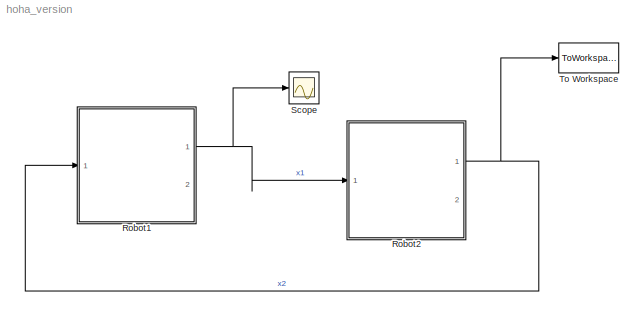
MODEL hoha_version
KIND model
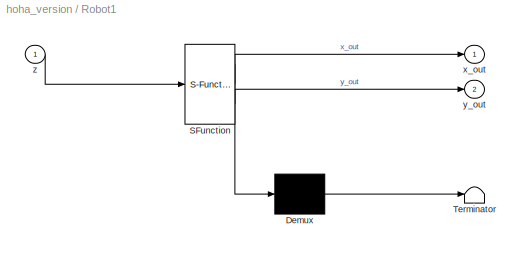
BLOCK [SubSystem] Robot1
  ErrorFcn = Stateflow.Translate.translate
  PermitHierarchicalResolution = ExplicitOnly
  Ports = [1, 2]
  RequestExecContextInheritance = off
  SFBlockType = Chart
  SID = 1
  TreatAsAtomicUnit = on
BLOCK [Demux] Robot1/ Demux 
  Outputs = 1
  Ports = [1, 1]
  SID = 1::90
BLOCK [S-Function] Robot1/ SFunction 
  EnableBusSupport = on
  FunctionName = sf_sfun
  PortCounts = [1 3]
  Ports = [1, 3]
  SFcnIsStateOwnerBlock = off
  SFunctionDeploymentMode = off
  SID = 1::89
  Tag = Stateflow S-Function hoha_version 3
BLOCK [Terminator] Robot1/ Terminator 
  SID = 1::91
BLOCK [Outport] Robot1/x_out
  IconDisplay = Port number
  SID = 1::94
BLOCK [Outport] Robot1/y_out
  IconDisplay = Port number
  Port = 2
  SID = 1::97
BLOCK [Inport] Robot1/z
  IconDisplay = Port number
  SID = 1::95
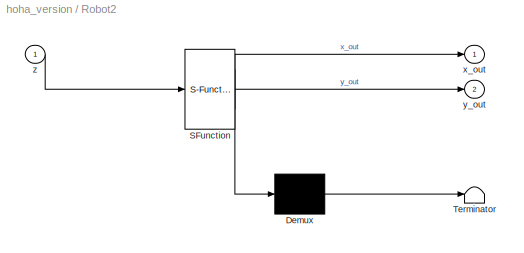
BLOCK [SubSystem] Robot2
  ErrorFcn = Stateflow.Translate.translate
  PermitHierarchicalResolution = ExplicitOnly
  Ports = [1, 2]
  RequestExecContextInheritance = off
  SFBlockType = Chart
  SID = 12
  TreatAsAtomicUnit = on
BLOCK [Demux] Robot2/ Demux 
  Outputs = 1
  Ports = [1, 1]
  SID = 12::90
BLOCK [S-Function] Robot2/ SFunction 
  EnableBusSupport = on
  FunctionName = sf_sfun
  PortCounts = [1 3]
  Ports = [1, 3]
  SFcnIsStateOwnerBlock = off
  SFunctionDeploymentMode = off
  SID = 12::89
  Tag = Stateflow S-Function hoha_version 1
BLOCK [Terminator] Robot2/ Terminator 
  SID = 12::91
BLOCK [Outport] Robot2/x_out
  IconDisplay = Port number
  SID = 12::94
BLOCK [Outport] Robot2/y_out
  IconDisplay = Port number
  Port = 2
  SID = 12::97
BLOCK [Inport] Robot2/z
  IconDisplay = Port number
  SID = 12::95
BLOCK [Scope] Scope
  Floating = off
  NumInputPorts = 1
  Ports = [1]
  SID = 25
  ScopeSpecificationString = Simulink.scopes.TimeScopeBlockCfg('CurrentConfiguration', extmgr.ConfigurationSet(extmgr.Configuration('Core','General UI',true),extmgr.Configuration('Core','Source UI',true),extmgr.Configuration('Sources','WiredSimulink',true),extmgr.Configuration('Visuals','Time Domain',true,'SerializedDisplays',{struct('MinYLimReal','-1.00000','MaxYLimReal','1.00000','YLabelReal','','MinYLimMag','0.00000','MaxY...<+1320ch>
BLOCK [ToWorkspace] To Workspace
  FixptAsFi = on
  MaxDataPoints = inf
  Ports = [1]
  SID = 23
  SampleTime = -1
  Save2DSignal = 3-D array (concatenate along third dimension)
  SaveFormat = Timeseries
  VariableName = simout
LINE Robot1/ Demux :1 -> Robot1/ Terminator :1
LINE Robot1/ SFunction :1 -> Robot1/ Demux :1
LINE Robot1/ SFunction :2 -> Robot1/x_out:1
LINE Robot1/ SFunction :3 -> Robot1/y_out:1
LINE Robot1/z:1 -> Robot1/ SFunction :1
NET Robot1:1 -> Robot2:1, Scope:1
LINE Robot2/ Demux :1 -> Robot2/ Terminator :1
LINE Robot2/ SFunction :1 -> Robot2/ Demux :1
LINE Robot2/ SFunction :2 -> Robot2/x_out:1
LINE Robot2/ SFunction :3 -> Robot2/y_out:1
LINE Robot2/z:1 -> Robot2/ SFunction :1
NET Robot2:1 -> Robot1:1, To Workspace:1
note: NET lines group one-source signal fan-out (src -> all destinations, sorted); 1:1 wires keep LINE
CHART Robot2 states=3 transitions=3
  STATE_LABEL 'Approach\\ndu:\\nx_dot = 0.5 * (24 - x);\\ny_dot = 0;\\nx_out = x;\\ny_out = y;'
  STATE_LABEL 'Wait\\ndu:\\nx_dot = 0;\\nx_out = x;\\ny_dot = 0;\\ny_out = y;'
  STATE_LABEL 'Transport\\ndu:\\nx_dot = 0;\\nx_out = x;\\ny_dot = 1;\\ny_out = y;'
CHART Robot1 states=3 transitions=3
  STATE_LABEL 'Approach\\ndu:\\nx_dot = 0.5 * (21 - x);\\ny_dot = 0;\\nx_out = x;\\ny_out = y;\\n'
  STATE_LABEL 'Wait\\ndu:\\nx_dot = 0;\\nx_out = x;\\ny_dot = 0;\\ny_out = y;'
  STATE_LABEL 'Transport\\ndu:\\nx_dot = 0;\\nx_out = x;\\ny_dot = 1;\\ny_out = y;'
